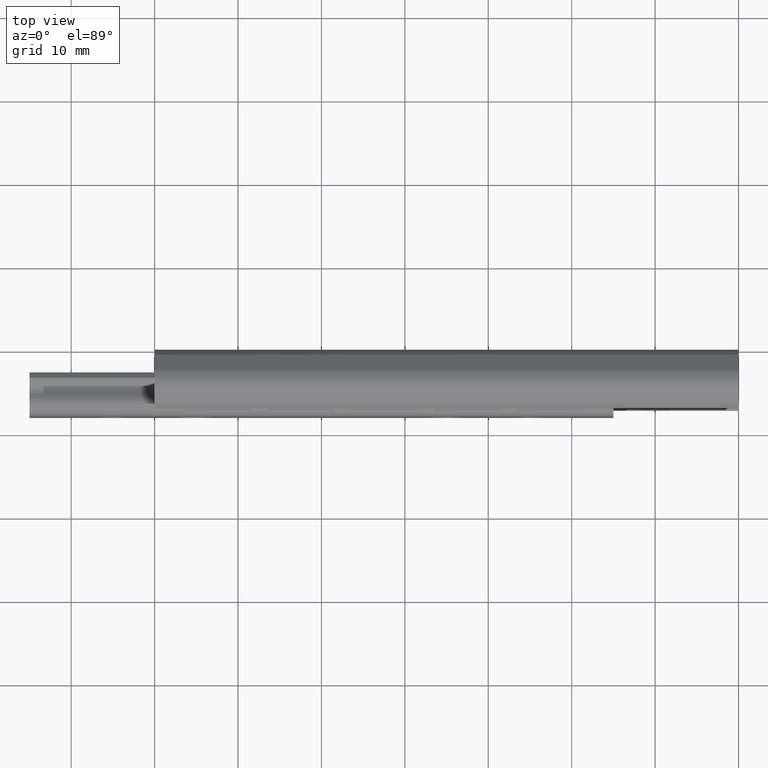
[diagram: clean part render]
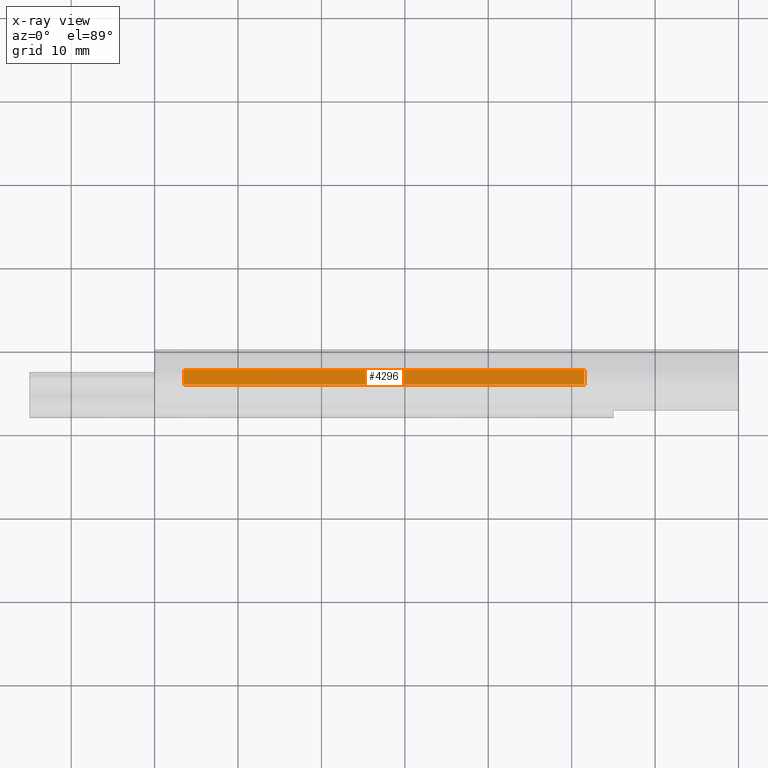
[diagram: x-ray — body ghosted, one internal face saturated and labeled with its STEP entity id]
A machine part, top view, then the same camera in x-ray: the body is ghosted and one INTERNAL B-rep face — a face not visible from any outside direction — is saturated and labeled: STEP entity #4296.
In plain terms, the highlighted face is a freeform B-spline surface patch.
Its self-contained STEP definition (entity closure, byte-faithful):
#3997=CARTESIAN_POINT('',(8.200000000000001,-4.169784154915665,3.844214388932865));
#3998=VERTEX_POINT('',#3997);
#4012=CARTESIAN_POINT('',(8.200000000000001,-2.399999999999920,4.483141138549110));
#4013=VERTEX_POINT('',#4012);
#4014=CARTESIAN_POINT('',(8.200000000000001,-4.169784154915665,3.844214388932865));
#4015=CARTESIAN_POINT('',(8.200000000000001,-2.399999999999920,4.483141138549110));
#4016=QUASI_UNIFORM_CURVE('',1,(#4014,#4015),.UNSPECIFIED.,.F.,.U.);
#4017=EDGE_CURVE('',#3998,#4013,#4016,.T.);
#4041=CARTESIAN_POINT('',(56.200000000000003,-2.399999999999920,4.483141138549110));
#4042=VERTEX_POINT('',#4041);
#4048=CARTESIAN_POINT('',(56.200000000000003,-4.169784154915665,3.844214388932865));
#4049=VERTEX_POINT('',#4048);
#4050=CARTESIAN_POINT('',(56.200000000000003,-4.169784154915665,3.844214388932865));
#4051=CARTESIAN_POINT('',(56.200000000000003,-2.399999999999920,4.483141138549110));
#4052=QUASI_UNIFORM_CURVE('',1,(#4050,#4051),.UNSPECIFIED.,.F.,.U.);
#4053=EDGE_CURVE('',#4049,#4042,#4052,.T.);
#4267=CARTESIAN_POINT('',(56.200000000000003,-2.399999999999920,4.483141138549110));
#4268=CARTESIAN_POINT('',(8.200000000000001,-2.399999999999920,4.483141138549110));
#4269=QUASI_UNIFORM_CURVE('',1,(#4267,#4268),.UNSPECIFIED.,.F.,.U.);
#4270=EDGE_CURVE('',#4042,#4013,#4269,.T.);
#4281=CARTESIAN_POINT('',(5.802399642443657,-2.311599440736182,4.515055472191297));
#4282=CARTESIAN_POINT('',(5.802399642443657,-4.258184777471818,3.812300032440880));
#4283=CARTESIAN_POINT('',(58.597601215863243,-2.311599440736182,4.515055472191297));
#4284=CARTESIAN_POINT('',(58.597601215863243,-4.258184777471818,3.812300032440880));
#4285=B_SPLINE_SURFACE_WITH_KNOTS('',1,1,((#4281,#4283),(#4282,#4284)),.UNSPECIFIED.,.F.,.F.,.U.,(2,2),(2,2),(0.0,2.069555430833634),(0.0,52.795201573419590),.UNSPECIFIED.);
#4286=ORIENTED_EDGE('',*,*,#4017,.F.);
#4287=CARTESIAN_POINT('',(56.200000000000003,-4.169784154915665,3.844214388932865));
#4288=CARTESIAN_POINT('',(8.200000000000001,-4.169784154915665,3.844214388932865));
#4289=QUASI_UNIFORM_CURVE('',1,(#4287,#4288),.UNSPECIFIED.,.F.,.U.);
#4290=EDGE_CURVE('',#4049,#3998,#4289,.T.);
#4291=ORIENTED_EDGE('',*,*,#4290,.F.);
#4292=ORIENTED_EDGE('',*,*,#4053,.T.);
#4293=ORIENTED_EDGE('',*,*,#4270,.T.);
#4294=EDGE_LOOP('',(#4286,#4291,#4292,#4293));
#4295=FACE_OUTER_BOUND('',#4294,.T.);
#4296=ADVANCED_FACE('',(#4295),#4285,.T.);